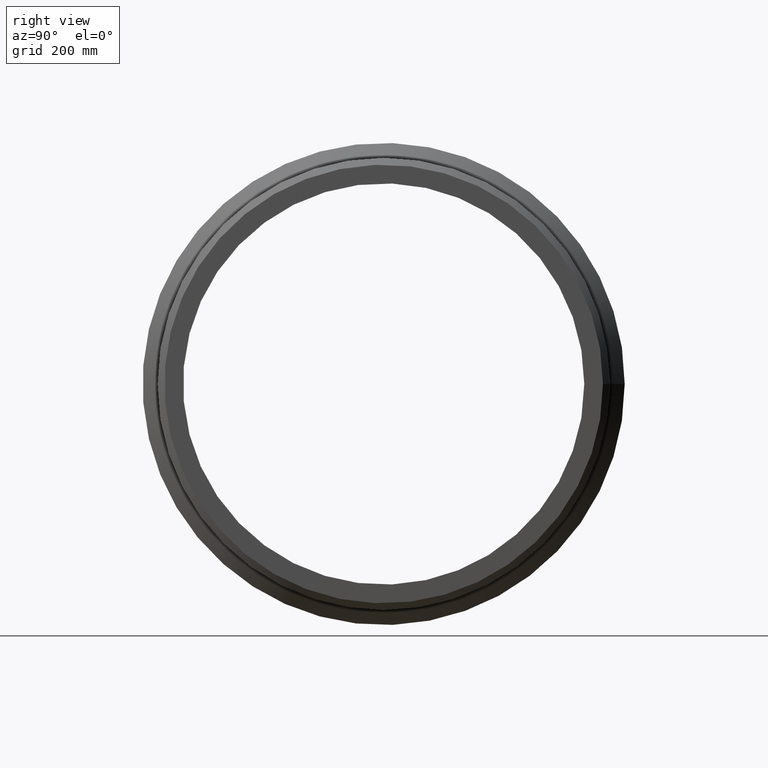
[diagram: clean part render]
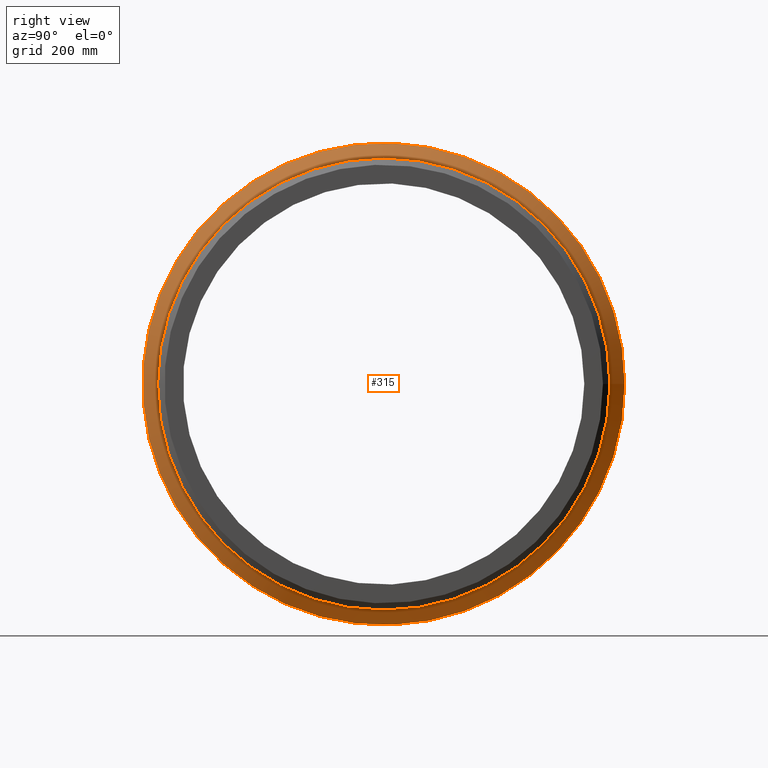
[diagram: same view with one face highlighted and labeled with its STEP entity id]
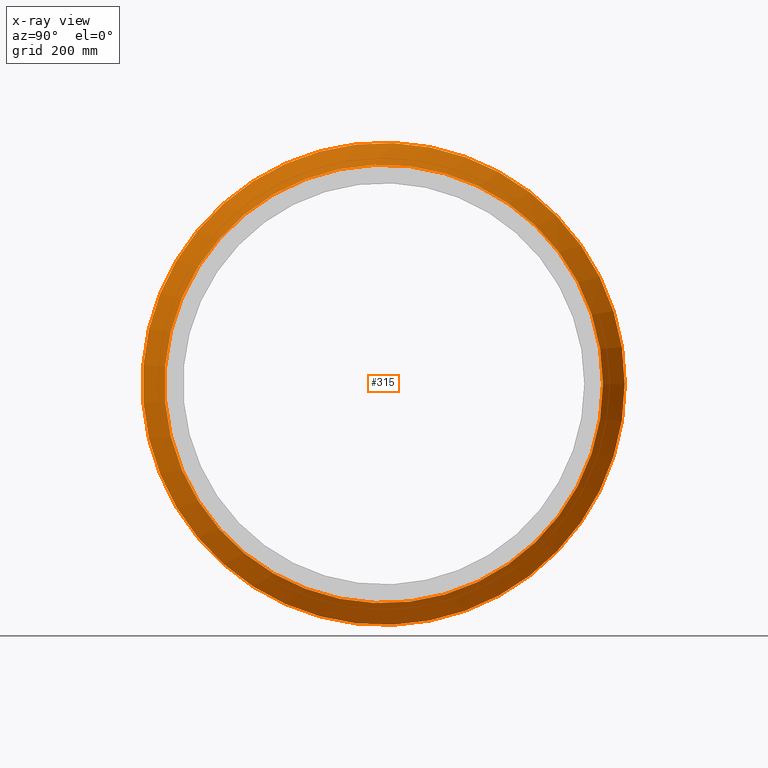
[diagram: x-ray of the same camera — body ghosted, the highlighted face saturated]
A machine part, right view. The second image highlights one B-rep face of the part: STEP entity #315.
The next image is the same camera in x-ray: the body ghosted, the highlighted face saturated — about 0% of this face is hidden behind the body in this view.
In plain terms, the highlighted conical surface has half-angle 45 deg.
Its self-contained STEP definition (entity closure, byte-faithful):
#18=CONICAL_SURFACE('',#367,407.25,45.);
#43=FACE_BOUND('',#132,.T.);
#85=FACE_OUTER_BOUND('',#131,.T.);
#131=EDGE_LOOP('',(#273));
#132=EDGE_LOOP('',(#274));
#164=CIRCLE('',#366,426.5);
#165=CIRCLE('',#368,388.);
#190=VERTEX_POINT('',#626);
#191=VERTEX_POINT('',#629);
#220=EDGE_CURVE('',#190,#190,#164,.T.);
#221=EDGE_CURVE('',#191,#191,#165,.T.);
#273=ORIENTED_EDGE('',*,*,#220,.T.);
#274=ORIENTED_EDGE('',*,*,#221,.F.);
#315=ADVANCED_FACE('',(#85,#43),#18,.T.);
#366=AXIS2_PLACEMENT_3D('',#627,#465,#466);
#367=AXIS2_PLACEMENT_3D('',#628,#467,#468);
#368=AXIS2_PLACEMENT_3D('',#630,#469,#470);
#465=DIRECTION('center_axis',(1.,1.83697019872103E-16,0.));
#466=DIRECTION('ref_axis',(0.,0.,-1.));
#467=DIRECTION('center_axis',(-1.,-1.83697019872103E-16,0.));
#468=DIRECTION('ref_axis',(-2.00152883312704E-16,1.,0.));
#469=DIRECTION('center_axis',(1.,1.83697019872103E-16,0.));
#470=DIRECTION('ref_axis',(0.,0.,-1.));
#626=CARTESIAN_POINT('',(94.4,426.5,0.));
#627=CARTESIAN_POINT('Origin',(94.4,6.06934953657428E-14,0.));
#628=CARTESIAN_POINT('Origin',(113.65,6.42296629982808E-14,0.));
#629=CARTESIAN_POINT('',(132.9,388.,0.));
#630=CARTESIAN_POINT('Origin',(132.9,6.77658306308188E-14,0.));